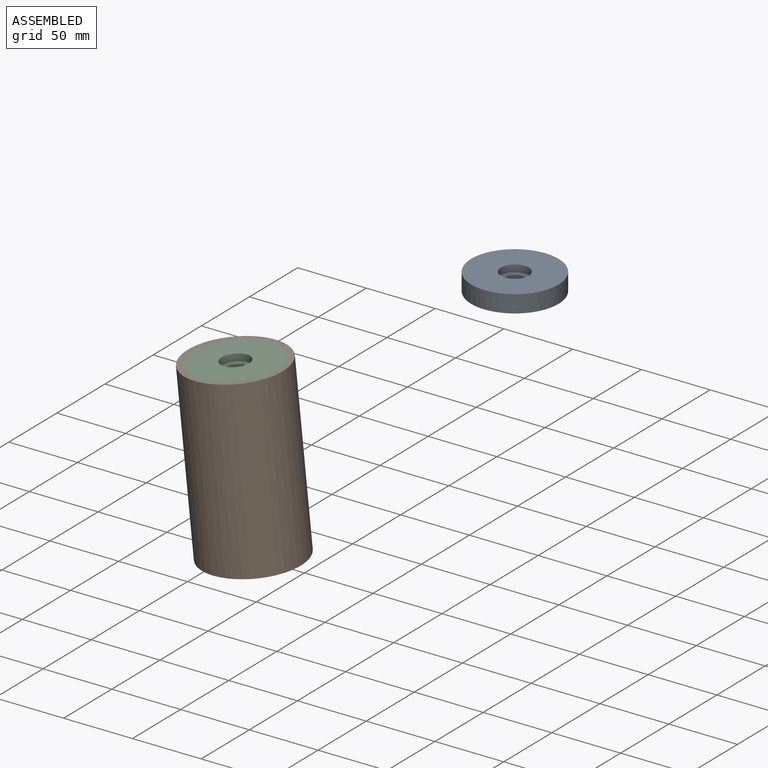
[diagram: assembled view]
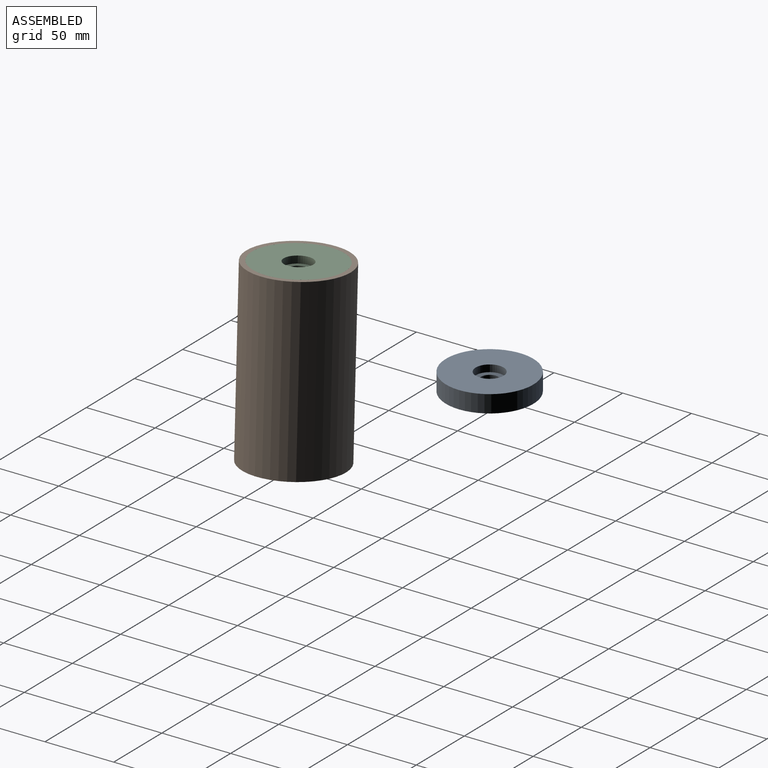
[diagram: assembled view, second angle]
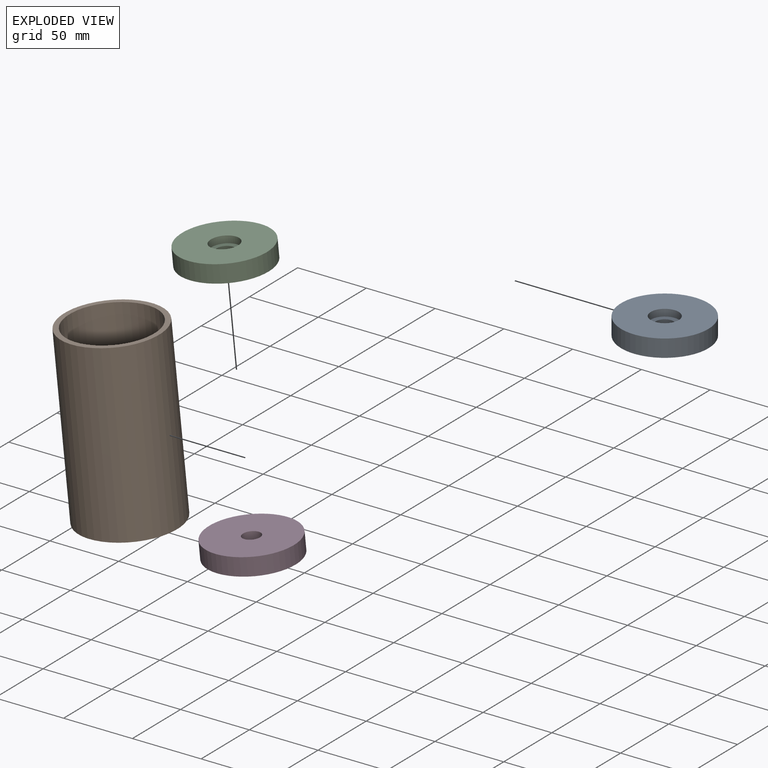
[diagram: exploded view]
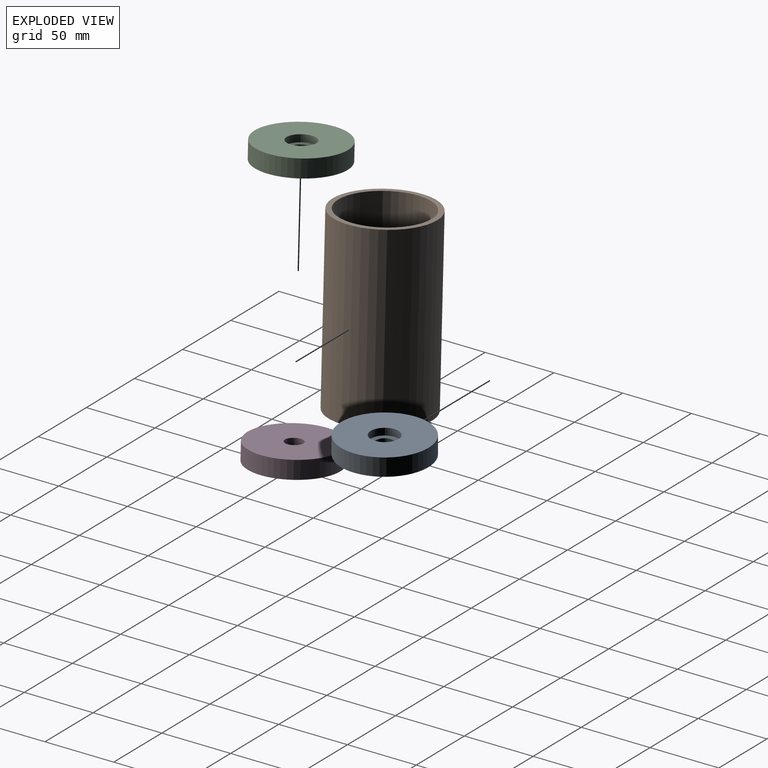
[diagram: exploded view, second angle]
ASSEMBLY  parts=4 mates=2
PART A: 6 faces, bbox 63.5x63.5x12.7 mm
  f0: cylinder r=31.75mm len=63.5mm, axis (0,0,-1), area 2533.5mm2, adj f1,f2
  f1: plane 63.5x63.5mm, normal (0,0,1), area 2842.6mm2, adj f0,f5
  f2: plane 63.5x63.5mm, normal (0,0,-1), area 3040.2mm2, adj f0,f3
  f3: cylinder r=6.35mm len=12.7mm, axis (0,0,1), area 304mm2, adj f2,f4
  f4: plane 20.32x20.32mm, normal (0,0,1), area 197.6mm2, adj f3,f5
  f5: cylinder r=10.16mm len=20.32mm, axis (0,0,1), area 324.3mm2, adj f1,f4
PART B: 4 faces, bbox 71.1x71.1x127 mm
  f0: cylinder r=31.75mm len=127mm, axis (0,0,1), area 25335.4mm2, adj f2,f3
  f1: cylinder r=35.56mm len=127mm, axis (0,0,1), area 28375.6mm2, adj f2,f3
  f2: plane 71.12x71.12mm, normal (0,0,-1), area 805.7mm2, adj f0,f1
  f3: plane 71.12x71.12mm, normal (0,0,1), area 805.7mm2, adj f0,f1
PART C: same geometry as A
PART D: same geometry as A
PLACE A t=(124.55,-106.14,-31.45)mm
PLACE B rot(axis=(-0.98,-0.17,-0.04),179.1deg) t=(55.24,-160.46,-150.47)mm
PLACE C rot(axis=(0.04,-0.24,0.97),20.6deg) t=(98.65,-283.71,-35.85)mm
PLACE D rot(axis=(-0.98,-0.17,-0.04),179.1deg) t=(17.6,-35.11,-137.07)mm
MATE fastened D.f0 <-> B.f0  axis (0.08,0.03,-1) through (55.24,-160.46,-150.47)mm
MATE fastened C.f0 <-> B.f0  axis (-0.08,-0.03,1) through (44.84,-164.25,-23.95)mm
